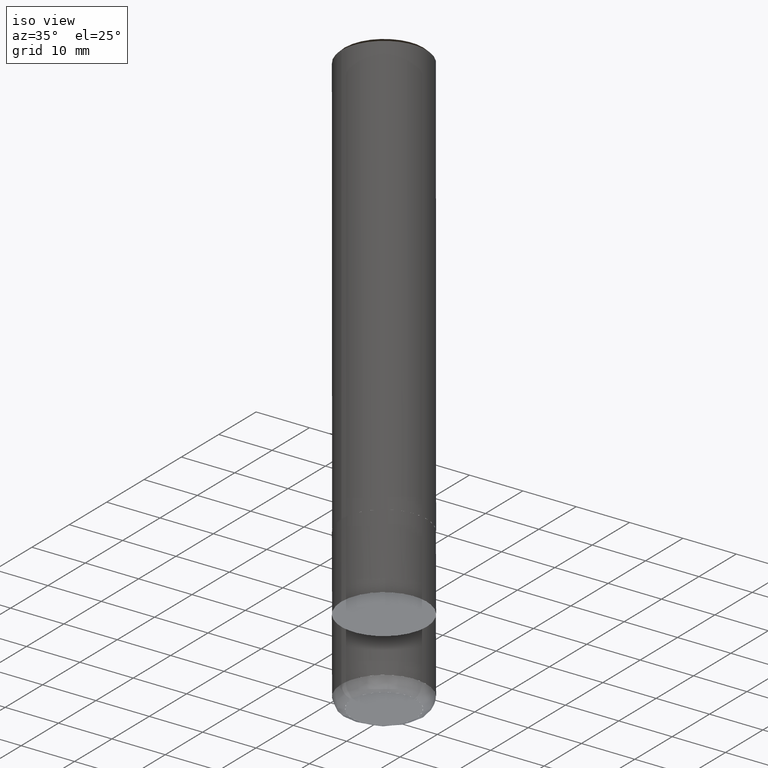
[diagram: clean part render]
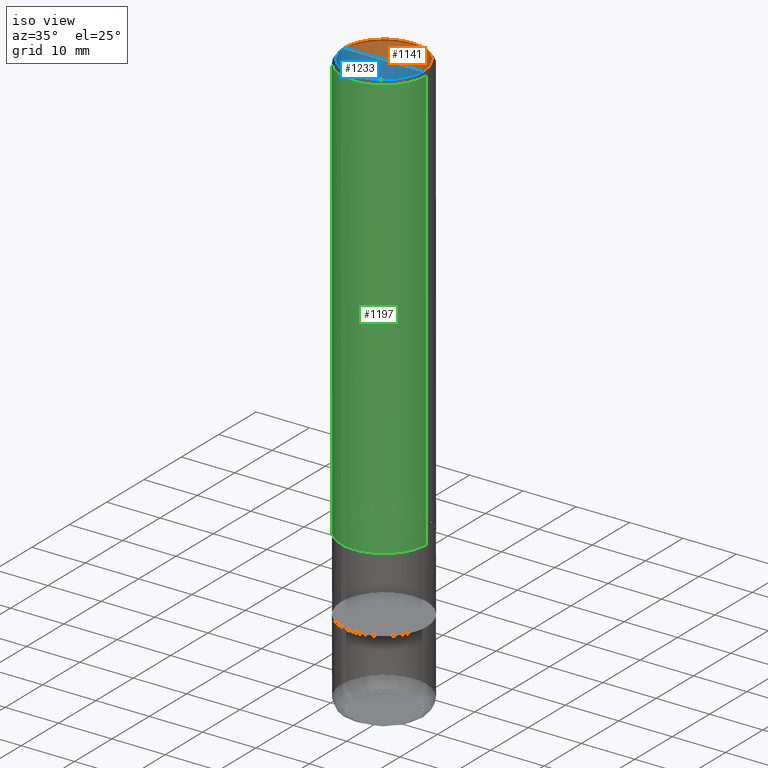
[diagram: same view with three faces highlighted in distinct colors, each labeled with its STEP entity id]
A machine part, iso view with three faces highlighted in distinct colors.
Their STEP definitions:

[orange] entity #1141 — the highlighted face is a freeform B-spline surface patch.
#880=CARTESIAN_POINT('',(7.4,0.0,80.0));
#881=CARTESIAN_POINT('',(7.4,7.4,80.0));
#882=CARTESIAN_POINT('',(0.0,7.4,80.0));
#883=CARTESIAN_POINT('',(-7.4,7.4,80.0));
#884=CARTESIAN_POINT('',(-7.4,0.0,80.0));
#885=CARTESIAN_POINT('',(0.0,0.0,80.0));
#1126=(
BOUNDED_SURFACE()
B_SPLINE_SURFACE(1,2,(
(#880,#881,#882,#883,#884),
(#885,#885,#885,#885,#885)
), .UNSPECIFIED.,.F.,.F.,.F.)
B_SPLINE_SURFACE_WITH_KNOTS((2,2),(3,2,3),(
0.0,1.0),(
0.0,0.5,1.0), .UNSPECIFIED.)
GEOMETRIC_REPRESENTATION_ITEM()
RATIONAL_B_SPLINE_SURFACE(((1.0,0.707106781187,1.0,0.707106781187,1.0),
(1.0,0.707106781187,1.0,0.707106781187,1.0)
))
REPRESENTATION_ITEM('')
SURFACE()
);
#1127=(
BOUNDED_CURVE()
B_SPLINE_CURVE(1,(#885,#880),.UNSPECIFIED.,.F.,.F.)
B_SPLINE_CURVE_WITH_KNOTS((2,2),
(0.0,1.0),.UNSPECIFIED.)
CURVE()
GEOMETRIC_REPRESENTATION_ITEM()
RATIONAL_B_SPLINE_CURVE((1.0,1.0))
REPRESENTATION_ITEM('')
);
#1128=(
BOUNDED_CURVE()
B_SPLINE_CURVE(2,(#880,#881,#882,#883,#884),.UNSPECIFIED.,.F.,.F.)
B_SPLINE_CURVE_WITH_KNOTS((3,2,3),
(0.0,0.5,1.0),.UNSPECIFIED.)
CURVE()
GEOMETRIC_REPRESENTATION_ITEM()
RATIONAL_B_SPLINE_CURVE((1.0,0.707106781187,1.0,0.707106781187,1.0))
REPRESENTATION_ITEM('')
);
#1129=(
BOUNDED_CURVE()
B_SPLINE_CURVE(1,(#884,#885),.UNSPECIFIED.,.F.,.F.)
B_SPLINE_CURVE_WITH_KNOTS((2,2),
(0.0,1.0),.UNSPECIFIED.)
CURVE()
GEOMETRIC_REPRESENTATION_ITEM()
RATIONAL_B_SPLINE_CURVE((1.0,1.0))
REPRESENTATION_ITEM('')
);
#1130=VERTEX_POINT('',#880);
#1131=VERTEX_POINT('',#884);
#1132=VERTEX_POINT('',#885);
#1133=EDGE_CURVE('',#1132,#1130,#1127,.T.);
#1134=EDGE_CURVE('',#1130,#1131,#1128,.T.);
#1135=EDGE_CURVE('',#1131,#1132,#1129,.T.);
#1136=ORIENTED_EDGE('',*,*,#1133,.T.);
#1137=ORIENTED_EDGE('',*,*,#1134,.T.);
#1138=ORIENTED_EDGE('',*,*,#1135,.T.);
#1139=EDGE_LOOP('',(#1136,#1137,#1138));
#1140=FACE_OUTER_BOUND('',#1139,.T.);
#1141=ADVANCED_FACE('',(#1140),#1126,.T.);

[blue] entity #1233 — the highlighted face is a freeform B-spline surface patch.
#880=CARTESIAN_POINT('',(7.4,0.0,80.0));
#884=CARTESIAN_POINT('',(-7.4,0.0,80.0));
#885=CARTESIAN_POINT('',(0.0,0.0,80.0));
#892=CARTESIAN_POINT('',(-7.4,-7.4,80.0));
#893=CARTESIAN_POINT('',(0.0,-7.4,80.0));
#894=CARTESIAN_POINT('',(7.4,-7.4,80.0));
#1218=(
BOUNDED_SURFACE()
B_SPLINE_SURFACE(1,2,(
(#884,#892,#893,#894,#880),
(#885,#885,#885,#885,#885)
), .UNSPECIFIED.,.F.,.F.,.F.)
B_SPLINE_SURFACE_WITH_KNOTS((2,2),(3,2,3),(
0.0,1.0),(
0.0,0.5,1.0), .UNSPECIFIED.)
GEOMETRIC_REPRESENTATION_ITEM()
RATIONAL_B_SPLINE_SURFACE(((1.0,0.707106781187,1.0,0.707106781187,1.0),
(1.0,0.707106781187,1.0,0.707106781187,1.0)
))
REPRESENTATION_ITEM('')
SURFACE()
);
#1219=(
BOUNDED_CURVE()
B_SPLINE_CURVE(1,(#885,#880),.UNSPECIFIED.,.F.,.F.)
B_SPLINE_CURVE_WITH_KNOTS((2,2),
(0.0,1.0),.UNSPECIFIED.)
CURVE()
GEOMETRIC_REPRESENTATION_ITEM()
RATIONAL_B_SPLINE_CURVE((1.0,1.0))
REPRESENTATION_ITEM('')
);
#1220=(
BOUNDED_CURVE()
B_SPLINE_CURVE(2,(#880,#894,#893,#892,#884),.UNSPECIFIED.,.F.,.F.)
B_SPLINE_CURVE_WITH_KNOTS((3,2,3),
(0.0,0.5,1.0),.UNSPECIFIED.)
CURVE()
GEOMETRIC_REPRESENTATION_ITEM()
RATIONAL_B_SPLINE_CURVE((1.0,0.707106781187,1.0,0.707106781187,1.0))
REPRESENTATION_ITEM('')
);
#1221=(
BOUNDED_CURVE()
B_SPLINE_CURVE(1,(#884,#885),.UNSPECIFIED.,.F.,.F.)
B_SPLINE_CURVE_WITH_KNOTS((2,2),
(0.0,1.0),.UNSPECIFIED.)
CURVE()
GEOMETRIC_REPRESENTATION_ITEM()
RATIONAL_B_SPLINE_CURVE((1.0,1.0))
REPRESENTATION_ITEM('')
);
#1222=VERTEX_POINT('',#880);
#1223=VERTEX_POINT('',#884);
#1224=VERTEX_POINT('',#885);
#1225=EDGE_CURVE('',#1224,#1222,#1219,.T.);
#1226=EDGE_CURVE('',#1222,#1223,#1220,.T.);
#1227=EDGE_CURVE('',#1223,#1224,#1221,.T.);
#1228=ORIENTED_EDGE('',*,*,#1225,.T.);
#1229=ORIENTED_EDGE('',*,*,#1226,.T.);
#1230=ORIENTED_EDGE('',*,*,#1227,.T.);
#1231=EDGE_LOOP('',(#1228,#1229,#1230));
#1232=FACE_OUTER_BOUND('',#1231,.T.);
#1233=ADVANCED_FACE('',(#1232),#1218,.T.);

[green] entity #1197 — the highlighted face is a freeform B-spline surface patch.
#870=CARTESIAN_POINT('',(8.0,0.0,0.0));
#874=CARTESIAN_POINT('',(-8.0,0.0,0.0));
#875=CARTESIAN_POINT('',(8.0,0.0,79.4));
#879=CARTESIAN_POINT('',(-8.0,0.0,79.4));
#886=CARTESIAN_POINT('',(-8.0,-8.0,0.0));
#887=CARTESIAN_POINT('',(0.0,-8.0,0.0));
#888=CARTESIAN_POINT('',(8.0,-8.0,0.0));
#889=CARTESIAN_POINT('',(-8.0,-8.0,79.4));
#890=CARTESIAN_POINT('',(0.0,-8.0,79.4));
#891=CARTESIAN_POINT('',(8.0,-8.0,79.4));
#1178=(
BOUNDED_SURFACE()
B_SPLINE_SURFACE(1,2,(
(#874,#886,#887,#888,#870),
(#879,#889,#890,#891,#875)
), .UNSPECIFIED.,.F.,.F.,.F.)
B_SPLINE_SURFACE_WITH_KNOTS((2,2),(3,2,3),(
0.0,1.0),(
0.0,0.5,1.0), .UNSPECIFIED.)
GEOMETRIC_REPRESENTATION_ITEM()
RATIONAL_B_SPLINE_SURFACE(((1.0,0.707106781187,1.0,0.707106781187,1.0),
(1.0,0.707106781187,1.0,0.707106781187,1.0)
))
REPRESENTATION_ITEM('')
SURFACE()
);
#1179=(
BOUNDED_CURVE()
B_SPLINE_CURVE(1,(#879,#874),.UNSPECIFIED.,.F.,.F.)
B_SPLINE_CURVE_WITH_KNOTS((2,2),
(0.0,1.0),.UNSPECIFIED.)
CURVE()
GEOMETRIC_REPRESENTATION_ITEM()
RATIONAL_B_SPLINE_CURVE((1.0,1.0))
REPRESENTATION_ITEM('')
);
#1180=(
BOUNDED_CURVE()
B_SPLINE_CURVE(2,(#874,#886,#887,#888,#870),.UNSPECIFIED.,.F.,.F.)
B_SPLINE_CURVE_WITH_KNOTS((3,2,3),
(0.0,0.5,1.0),.UNSPECIFIED.)
CURVE()
GEOMETRIC_REPRESENTATION_ITEM()
RATIONAL_B_SPLINE_CURVE((1.0,0.707106781187,1.0,0.707106781187,1.0))
REPRESENTATION_ITEM('')
);
#1181=(
BOUNDED_CURVE()
B_SPLINE_CURVE(1,(#870,#875),.UNSPECIFIED.,.F.,.F.)
B_SPLINE_CURVE_WITH_KNOTS((2,2),
(0.0,1.0),.UNSPECIFIED.)
CURVE()
GEOMETRIC_REPRESENTATION_ITEM()
RATIONAL_B_SPLINE_CURVE((1.0,1.0))
REPRESENTATION_ITEM('')
);
#1182=(
BOUNDED_CURVE()
B_SPLINE_CURVE(2,(#875,#891,#890,#889,#879),.UNSPECIFIED.,.F.,.F.)
B_SPLINE_CURVE_WITH_KNOTS((3,2,3),
(0.0,0.5,1.0),.UNSPECIFIED.)
CURVE()
GEOMETRIC_REPRESENTATION_ITEM()
RATIONAL_B_SPLINE_CURVE((1.0,0.707106781187,1.0,0.707106781187,1.0))
REPRESENTATION_ITEM('')
);
#1183=VERTEX_POINT('',#870);
#1184=VERTEX_POINT('',#874);
#1185=VERTEX_POINT('',#875);
#1186=VERTEX_POINT('',#879);
#1187=EDGE_CURVE('',#1186,#1184,#1179,.T.);
#1188=EDGE_CURVE('',#1184,#1183,#1180,.T.);
#1189=EDGE_CURVE('',#1183,#1185,#1181,.T.);
#1190=EDGE_CURVE('',#1185,#1186,#1182,.T.);
#1191=ORIENTED_EDGE('',*,*,#1187,.T.);
#1192=ORIENTED_EDGE('',*,*,#1188,.T.);
#1193=ORIENTED_EDGE('',*,*,#1189,.T.);
#1194=ORIENTED_EDGE('',*,*,#1190,.T.);
#1195=EDGE_LOOP('',(#1191,#1192,#1193,#1194));
#1196=FACE_OUTER_BOUND('',#1195,.T.);
#1197=ADVANCED_FACE('',(#1196),#1178,.T.);